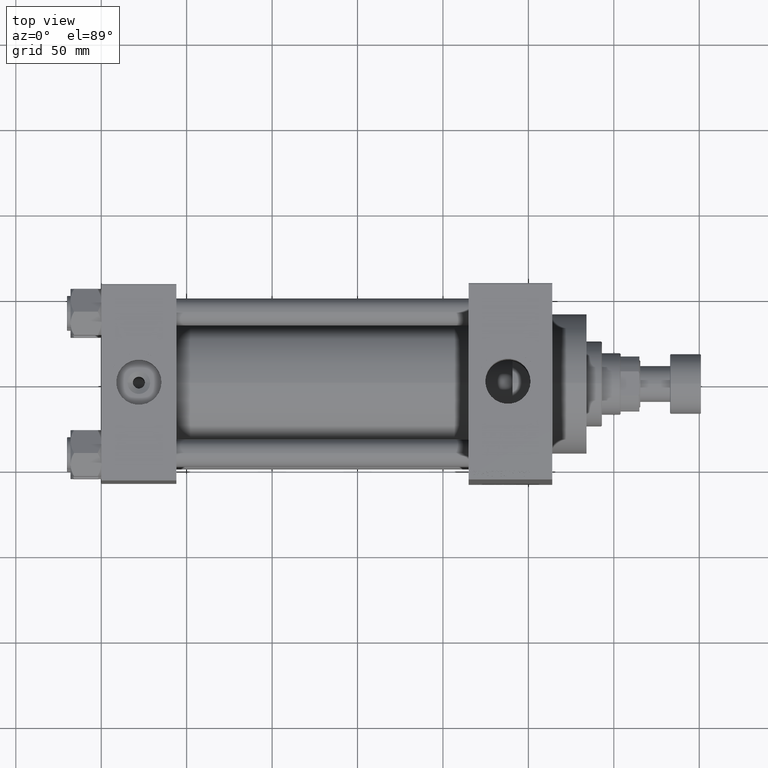
[diagram: clean part render]
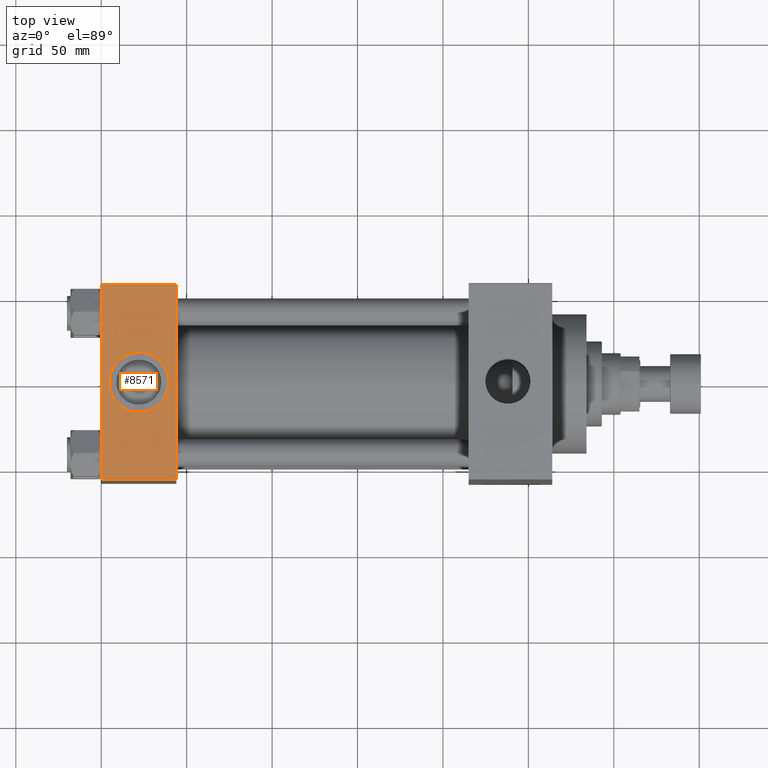
[diagram: same view with one face highlighted and labeled with its STEP entity id]
A machine part, top view. The second image highlights one B-rep face of the part: STEP entity #8571.
In plain terms, the highlighted planar face has unit normal (0, 0, -1).
Its self-contained STEP definition (entity closure, byte-faithful):
#1664 = CARTESIAN_POINT ( 'NONE',  ( 44.00000000000000000, 57.00000000000001421, 57.50000000000001421 ) ) ;
#3415 = ORIENTED_EDGE ( 'NONE', *, *, #43964, .T. ) ;
#3689 = DIRECTION ( 'NONE',  ( 1.000000000000000000, 0.000000000000000000, 0.000000000000000000 ) ) ;
#4343 = EDGE_LOOP ( 'NONE', ( #8269, #10075 ) ) ;
#5023 = CARTESIAN_POINT ( 'NONE',  ( 44.00000000000000000, -56.99999999999997158, 57.49999999999999289 ) ) ;
#5163 = VECTOR ( 'NONE', #21587, 1000.000000000000000 ) ;
#5797 = VERTEX_POINT ( 'NONE', #39473 ) ;
#6678 = AXIS2_PLACEMENT_3D ( 'NONE', #7815, #33602, #3689 ) ;
#7815 = CARTESIAN_POINT ( 'NONE',  ( 22.00000000000000000, -1.214306433183765124E-14, 57.50000000000000711 ) ) ;
#8269 = ORIENTED_EDGE ( 'NONE', *, *, #14026, .F. ) ;
#8571 = ADVANCED_FACE ( 'NONE', ( #9543, #13190 ), #12701, .F. ) ;
#9543 = FACE_BOUND ( 'NONE', #4343, .T. ) ;
#10075 = ORIENTED_EDGE ( 'NONE', *, *, #15801, .F. ) ;
#10544 = AXIS2_PLACEMENT_3D ( 'NONE', #46043, #19530, #31441 ) ;
#12290 = VECTOR ( 'NONE', #27645, 1000.000000000000000 ) ;
#12296 = DIRECTION ( 'NONE',  ( 0.000000000000000000, -1.000000000000000000, -1.810146235801885567E-16 ) ) ;
#12701 = PLANE ( 'NONE',  #42979 ) ;
#13172 = VECTOR ( 'NONE', #12296, 1000.000000000000000 ) ;
#13190 = FACE_OUTER_BOUND ( 'NONE', #44340, .T. ) ;
#14026 = EDGE_CURVE ( 'NONE', #39601, #25156, #47842, .T. ) ;
#15801 = EDGE_CURVE ( 'NONE', #25156, #39601, #27646, .T. ) ;
#16591 = DIRECTION ( 'NONE',  ( 0.000000000000000000, 1.000000000000000000, 1.810146235801885567E-16 ) ) ;
#17075 = CARTESIAN_POINT ( 'NONE',  ( 44.00000000000000000, 57.50000000000000000, 57.50000000000001421 ) ) ;
#18076 = CARTESIAN_POINT ( 'NONE',  ( 0.000000000000000000, 57.00000000000001421, 57.50000000000001421 ) ) ;
#19263 = LINE ( 'NONE', #23153, #39826 ) ;
#19530 = DIRECTION ( 'NONE',  ( 0.000000000000000000, 0.000000000000000000, 1.000000000000000000 ) ) ;
#20269 = EDGE_CURVE ( 'NONE', #5797, #29421, #22298, .T. ) ;
#21587 = DIRECTION ( 'NONE',  ( 1.000000000000000000, 0.000000000000000000, 0.000000000000000000 ) ) ;
#22298 = LINE ( 'NONE', #25723, #5163 ) ;
#23153 = CARTESIAN_POINT ( 'NONE',  ( 0.000000000000000000, 57.00000000000001421, 57.50000000000001421 ) ) ;
#23458 = EDGE_CURVE ( 'NONE', #44477, #29421, #34692, .T. ) ;
#25156 = VERTEX_POINT ( 'NONE', #45537 ) ;
#25723 = CARTESIAN_POINT ( 'NONE',  ( 44.00000000000000000, -56.99999999999997158, 57.49999999999999289 ) ) ;
#27310 = DIRECTION ( 'NONE',  ( 0.000000000000000000, 1.810146235801885567E-16, -1.000000000000000000 ) ) ;
#27645 = DIRECTION ( 'NONE',  ( 0.000000000000000000, -1.000000000000000000, -1.810146235801885567E-16 ) ) ;
#27646 = CIRCLE ( 'NONE', #6678, 17.50000000000000000 ) ;
#29421 = VERTEX_POINT ( 'NONE', #5023 ) ;
#29937 = CARTESIAN_POINT ( 'NONE',  ( 39.50000000000000000, -1.214306433183765124E-14, 57.50000000000000711 ) ) ;
#29968 = DIRECTION ( 'NONE',  ( -1.000000000000000000, 0.000000000000000000, 0.000000000000000000 ) ) ;
#30774 = LINE ( 'NONE', #45630, #13172 ) ;
#31441 = DIRECTION ( 'NONE',  ( 1.000000000000000000, 0.000000000000000000, 0.000000000000000000 ) ) ;
#33602 = DIRECTION ( 'NONE',  ( 0.000000000000000000, 0.000000000000000000, 1.000000000000000000 ) ) ;
#34692 = LINE ( 'NONE', #46142, #12290 ) ;
#35226 = ORIENTED_EDGE ( 'NONE', *, *, #23458, .F. ) ;
#36969 = EDGE_CURVE ( 'NONE', #43764, #5797, #30774, .T. ) ;
#39473 = CARTESIAN_POINT ( 'NONE',  ( 0.000000000000000000, -56.99999999999997158, 57.49999999999999289 ) ) ;
#39601 = VERTEX_POINT ( 'NONE', #29937 ) ;
#39826 = VECTOR ( 'NONE', #29968, 1000.000000000000000 ) ;
#42979 = AXIS2_PLACEMENT_3D ( 'NONE', #17075, #27310, #16591 ) ;
#43579 = ORIENTED_EDGE ( 'NONE', *, *, #20269, .T. ) ;
#43764 = VERTEX_POINT ( 'NONE', #18076 ) ;
#43964 = EDGE_CURVE ( 'NONE', #44477, #43764, #19263, .T. ) ;
#44340 = EDGE_LOOP ( 'NONE', ( #46473, #43579, #35226, #3415 ) ) ;
#44477 = VERTEX_POINT ( 'NONE', #1664 ) ;
#45537 = CARTESIAN_POINT ( 'NONE',  ( 4.499999999999997335, -9.999932433329782990E-15, 57.50000000000000711 ) ) ;
#45630 = CARTESIAN_POINT ( 'NONE',  ( 0.000000000000000000, 57.50000000000000000, 57.50000000000001421 ) ) ;
#46043 = CARTESIAN_POINT ( 'NONE',  ( 22.00000000000000000, -1.214306433183765124E-14, 57.50000000000000711 ) ) ;
#46142 = CARTESIAN_POINT ( 'NONE',  ( 44.00000000000000000, 57.50000000000000000, 57.50000000000001421 ) ) ;
#46473 = ORIENTED_EDGE ( 'NONE', *, *, #36969, .T. ) ;
#47842 = CIRCLE ( 'NONE', #10544, 17.50000000000000000 ) ;